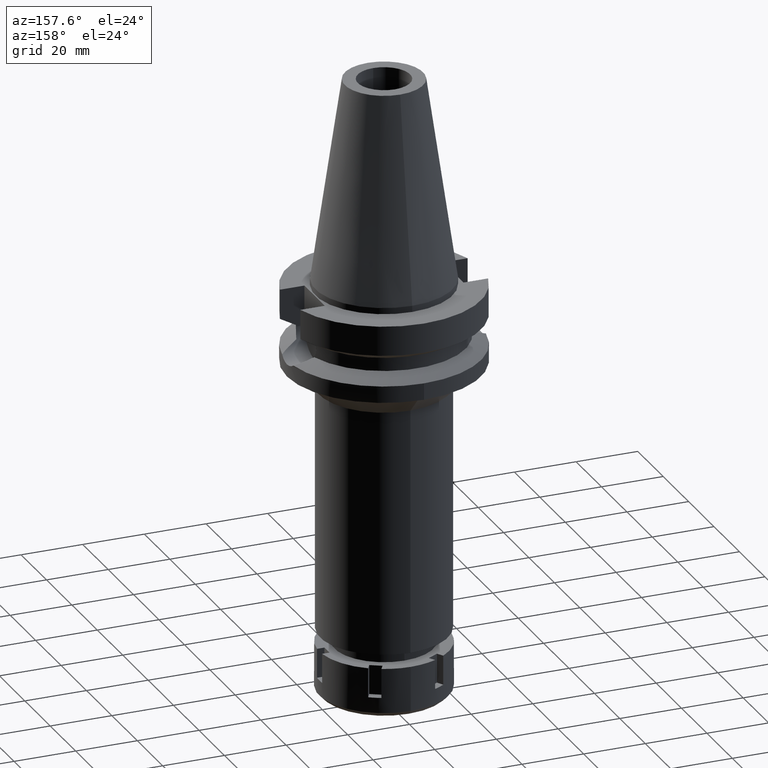
[diagram: clean part render]
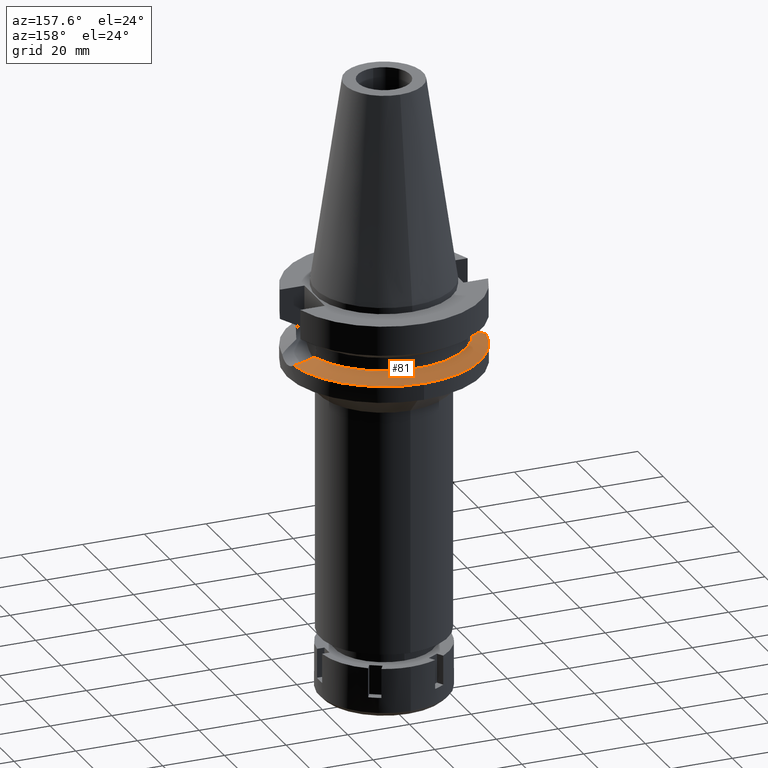
[diagram: same view with one face highlighted and labeled with its STEP entity id]
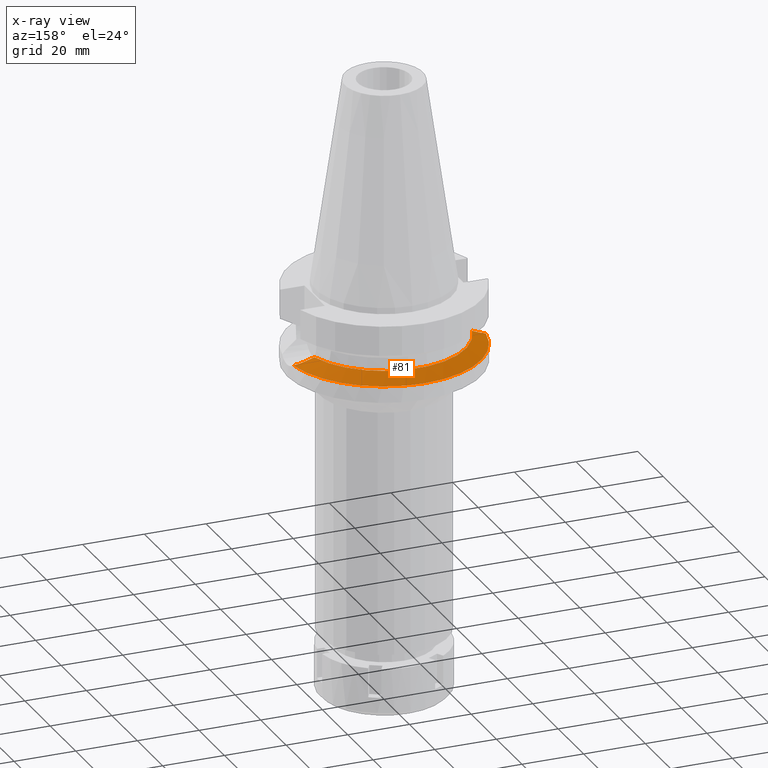
[diagram: x-ray of the same camera — body ghosted, the highlighted face saturated]
A machine part, auxiliary view. The second image highlights one B-rep face of the part: STEP entity #81.
The next image is the same camera in x-ray: the body ghosted, the highlighted face saturated — about 0% of this face is hidden behind the body in this view.
In plain terms, the highlighted conical surface has half-angle 60 deg.
Its self-contained STEP definition (entity closure, byte-faithful):
#81 = ADVANCED_FACE ( 'NONE', ( #1671 ), #715, .T. ) ;
#114 = CARTESIAN_POINT ( 'NONE',  ( -25.53175183775000079, 7.097862220092999941, -18.74774300138999905 ) ) ;
#205 = DIRECTION ( 'NONE',  ( 0.0000000000000000000, 1.000000000000000000, 0.0000000000000000000 ) ) ;
#235 = CARTESIAN_POINT ( 'NONE',  ( -28.71232155724841562, 5.946365825036243891, -20.37675015441819326 ) ) ;
#318 = CARTESIAN_POINT ( 'NONE',  ( 28.75926920179050583, 5.923802922901473700, -20.40110178204426106 ) ) ;
#356 = CIRCLE ( 'NONE', #941, 26.50000000000000000 ) ;
#405 = CARTESIAN_POINT ( 'NONE',  ( 29.52762537198564630, 5.539664363349657172, -20.79338903390486593 ) ) ;
#413 = ORIENTED_EDGE ( 'NONE', *, *, #915, .F. ) ;
#439 = B_SPLINE_CURVE_WITH_KNOTS ( 'NONE', 3,
 ( #1725, #3094, #2094, #1502, #405, #3471, #2291, #318, #1163, #2028, #959, #589, #1262, #1524, #1743, #2540 ),
 .UNSPECIFIED., .F., .F.,
 ( 4, 2, 2, 1, 1, 1, 1, 2, 2, 4 ),
 ( 0.0000000000000000000, 0.2500000000000044964, 0.3750000000000063838, 0.4375000000000082712, 0.4687500000000097700, 0.4843750000000111022, 0.4921875000000114353, 0.4960937500000111022, 0.5000000000000106581, 1.000000000000000000 ),
 .UNSPECIFIED. ) ;
#503 = DIRECTION ( 'NONE',  ( 0.0000000000000000000, 1.000000000000000000, 0.0000000000000000000 ) ) ;
#520 = CARTESIAN_POINT ( 'NONE',  ( -26.16677378512287433, 6.923305568303066870, -19.07398389329269861 ) ) ;
#569 = VERTEX_POINT ( 'NONE', #2984 ) ;
#589 = CARTESIAN_POINT ( 'NONE',  ( 28.54897579744302050, 6.020616302497152184, -20.29366076854866918 ) ) ;
#709 = CARTESIAN_POINT ( 'NONE',  ( 0.0000000000000000000, 0.0000000000000000000, -18.74774300138999905 ) ) ;
#715 = CONICAL_SURFACE ( 'NONE', #1767, 29.00000000000000000, 1.047197551196400456 ) ;
#759 = ORIENTED_EDGE ( 'NONE', *, *, #3179, .F. ) ;
#823 = EDGE_LOOP ( 'NONE', ( #2247, #759, #413, #1737, #3145 ) ) ;
#845 = CARTESIAN_POINT ( 'NONE',  ( 31.17899877608999759, 4.485536235554000051, -21.63449434733000132 ) ) ;
#867 = CARTESIAN_POINT ( 'NONE',  ( -28.35008097343646938, 6.110095676657705255, -20.19175554495783231 ) ) ;
#915 = EDGE_CURVE ( 'NONE', #3000, #3034, #1529, .T. ) ;
#941 = AXIS2_PLACEMENT_3D ( 'NONE', #709, #2109, #503 ) ;
#944 = CARTESIAN_POINT ( 'NONE',  ( -27.84650451070807620, 6.323431222103750748, -19.93445268124403924 ) ) ;
#959 = CARTESIAN_POINT ( 'NONE',  ( 28.56528401721734056, 6.013210184411459380, -20.30199349301835454 ) ) ;
#1123 = CARTESIAN_POINT ( 'NONE',  ( -31.17899877608999759, 4.485536235554000051, -21.63449434733000132 ) ) ;
#1124 = VERTEX_POINT ( 'NONE', #2380 ) ;
#1160 = B_SPLINE_CURVE_WITH_KNOTS ( 'NONE', 3,
 ( #1977, #520, #3611, #3350, #944, #3399, #867, #1637, #235, #1917, #1416, #1123 ),
 .UNSPECIFIED., .F., .F.,
 ( 4, 2, 2, 2, 2, 4 ),
 ( 0.0000000000000000000, 0.2500000000000003886, 0.3750000000000006661, 0.4375000000000006661, 0.5000000000000006661, 1.000000000000000000 ),
 .UNSPECIFIED. ) ;
#1163 = CARTESIAN_POINT ( 'NONE',  ( 28.64651449015749307, 5.976082230220999492, -20.34349684164257965 ) ) ;
#1214 = DIRECTION ( 'NONE',  ( 0.0000000000000000000, 0.0000000000000000000, -1.000000000000000000 ) ) ;
#1262 = CARTESIAN_POINT ( 'NONE',  ( 28.53937146401517921, 6.024967538196595029, -20.28875334486916415 ) ) ;
#1266 = CARTESIAN_POINT ( 'NONE',  ( 0.0000000000000000000, 0.0000000000000000000, -20.19111867435999841 ) ) ;
#1281 = DIRECTION ( 'NONE',  ( 0.0000000000000000000, 0.0000000000000000000, -1.000000000000000000 ) ) ;
#1344 = EDGE_CURVE ( 'NONE', #2766, #569, #1160, .T. ) ;
#1408 = AXIS2_PLACEMENT_3D ( 'NONE', #1776, #1214, #2093 ) ;
#1416 = CARTESIAN_POINT ( 'NONE',  ( -30.52696963517503548, 4.980210300935611123, -21.30255024958061938 ) ) ;
#1502 = CARTESIAN_POINT ( 'NONE',  ( 29.75841615283154340, 5.412687827857559419, -20.91109324893380617 ) ) ;
#1524 = CARTESIAN_POINT ( 'NONE',  ( 27.67069231127079476, 6.417825541736004169, -19.84488935090440975 ) ) ;
#1529 = CIRCLE ( 'NONE', #3581, 31.50000000000000000 ) ;
#1537 = EDGE_CURVE ( 'NONE', #569, #3000, #3512, .T. ) ;
#1637 = CARTESIAN_POINT ( 'NONE',  ( -28.59248024161176360, 6.001674122501648334, -20.31555478010441007 ) ) ;
#1671 = FACE_OUTER_BOUND ( 'NONE', #823, .T. ) ;
#1675 = EDGE_CURVE ( 'NONE', #1124, #2766, #356, .T. ) ;
#1725 = CARTESIAN_POINT ( 'NONE',  ( 31.17899877608999759, 4.485536235554000051, -21.63449434733000132 ) ) ;
#1737 = ORIENTED_EDGE ( 'NONE', *, *, #1537, .F. ) ;
#1743 = CARTESIAN_POINT ( 'NONE',  ( 26.67039708482257510, 6.784868153146443426, -19.33271906798138318 ) ) ;
#1767 = AXIS2_PLACEMENT_3D ( 'NONE', #1266, #1281, #2379 ) ;
#1776 = CARTESIAN_POINT ( 'NONE',  ( 0.0000000000000000000, 0.0000000000000000000, -21.63449434733000132 ) ) ;
#1917 = CARTESIAN_POINT ( 'NONE',  ( -29.74291398549627985, 5.456384192285232082, -20.90306076056072371 ) ) ;
#1977 = CARTESIAN_POINT ( 'NONE',  ( -25.53175183775000079, 7.097862220092999941, -18.74774300138999905 ) ) ;
#2028 = CARTESIAN_POINT ( 'NONE',  ( 28.58971628630481021, 6.002091552010150544, -20.31447707269555281 ) ) ;
#2093 = DIRECTION ( 'NONE',  ( -0.9898094849552905306, 0.1423979757318985240, 0.0000000000000000000 ) ) ;
#2094 = CARTESIAN_POINT ( 'NONE',  ( 30.42000646758037874, 5.025107480164177964, -21.24826037807936530 ) ) ;
#2109 = DIRECTION ( 'NONE',  ( 0.0000000000000000000, 0.0000000000000000000, 1.000000000000000000 ) ) ;
#2247 = ORIENTED_EDGE ( 'NONE', *, *, #1675, .F. ) ;
#2291 = CARTESIAN_POINT ( 'NONE',  ( 28.98141184076710530, 5.818223346335262391, -20.51457135839722667 ) ) ;
#2379 = DIRECTION ( 'NONE',  ( 0.0000000000000000000, -1.000000000000000000, 0.0000000000000000000 ) ) ;
#2380 = CARTESIAN_POINT ( 'NONE',  ( 25.53175183775000079, 7.097862220092999941, -18.74774300138999905 ) ) ;
#2442 = CARTESIAN_POINT ( 'NONE',  ( 0.0000000000000000000, 0.0000000000000000000, -21.63449434733000132 ) ) ;
#2540 = CARTESIAN_POINT ( 'NONE',  ( 25.53175183775000079, 7.097862220092999941, -18.74774300138999905 ) ) ;
#2638 = DIRECTION ( 'NONE',  ( 0.0000000000000000000, 0.0000000000000000000, -1.000000000000000000 ) ) ;
#2766 = VERTEX_POINT ( 'NONE', #114 ) ;
#2984 = CARTESIAN_POINT ( 'NONE',  ( -31.17899877608999759, 4.485536235554000051, -21.63449434733000132 ) ) ;
#3000 = VERTEX_POINT ( 'NONE', #3314 ) ;
#3034 = VERTEX_POINT ( 'NONE', #845 ) ;
#3094 = CARTESIAN_POINT ( 'NONE',  ( 30.82002397369443258, 4.757879162780902504, -21.45174244343492376 ) ) ;
#3145 = ORIENTED_EDGE ( 'NONE', *, *, #1344, .F. ) ;
#3179 = EDGE_CURVE ( 'NONE', #3034, #1124, #439, .T. ) ;
#3314 = CARTESIAN_POINT ( 'NONE',  ( 0.0000000000000000000, 31.50000000000000000, -21.63449434733000132 ) ) ;
#3350 = CARTESIAN_POINT ( 'NONE',  ( -27.58264475524388715, 6.427647779422705376, -19.79952420951831016 ) ) ;
#3399 = CARTESIAN_POINT ( 'NONE',  ( -28.22619877843770198, 6.163838522898283934, -20.12847539355885829 ) ) ;
#3471 = CARTESIAN_POINT ( 'NONE',  ( 29.16604818682235489, 5.726050486061718736, -20.60884175393725926 ) ) ;
#3512 = CIRCLE ( 'NONE', #1408, 31.50000000000001421 ) ;
#3581 = AXIS2_PLACEMENT_3D ( 'NONE', #2442, #2638, #205 ) ;
#3611 = CARTESIAN_POINT ( 'NONE',  ( -26.75887475791794046, 6.731811037506566286, -19.37779677665893985 ) ) ;